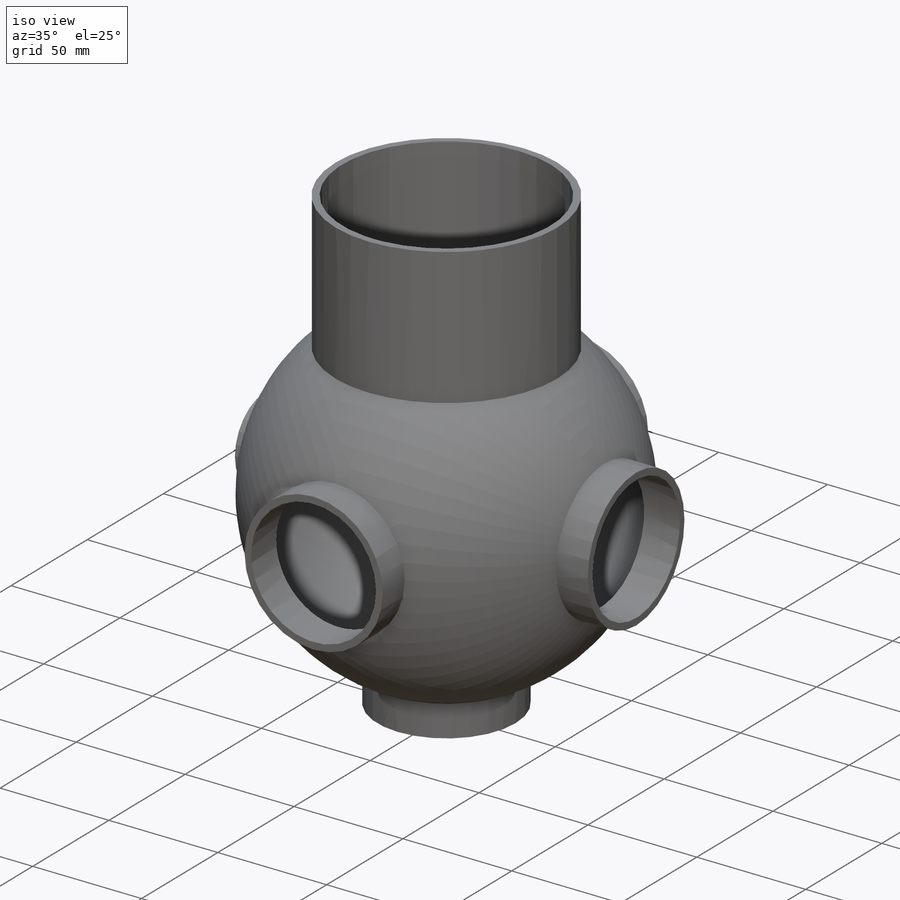
[diagram: iso view]
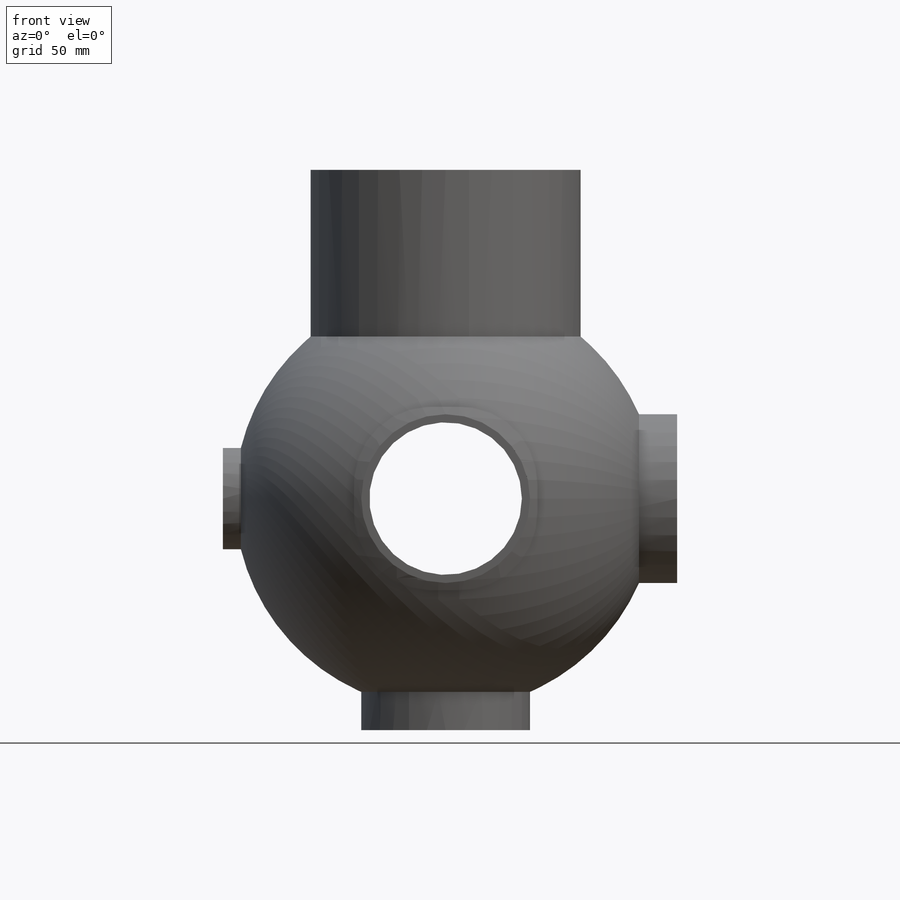
[diagram: front view]
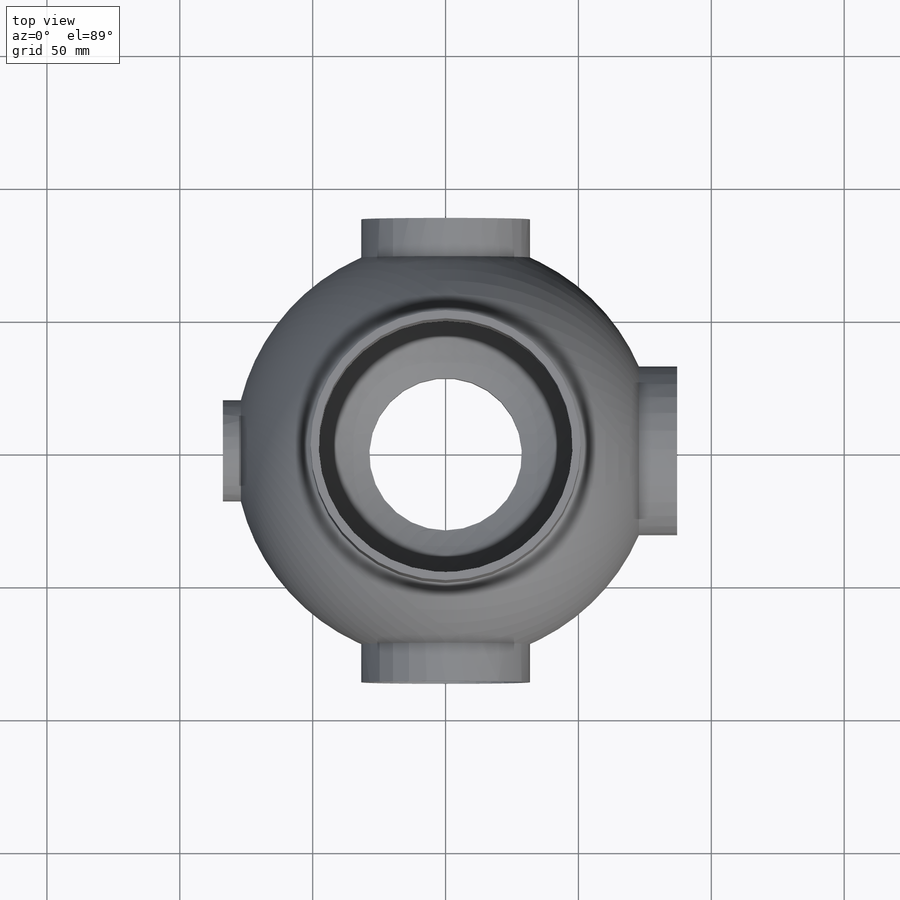
[diagram: top view]
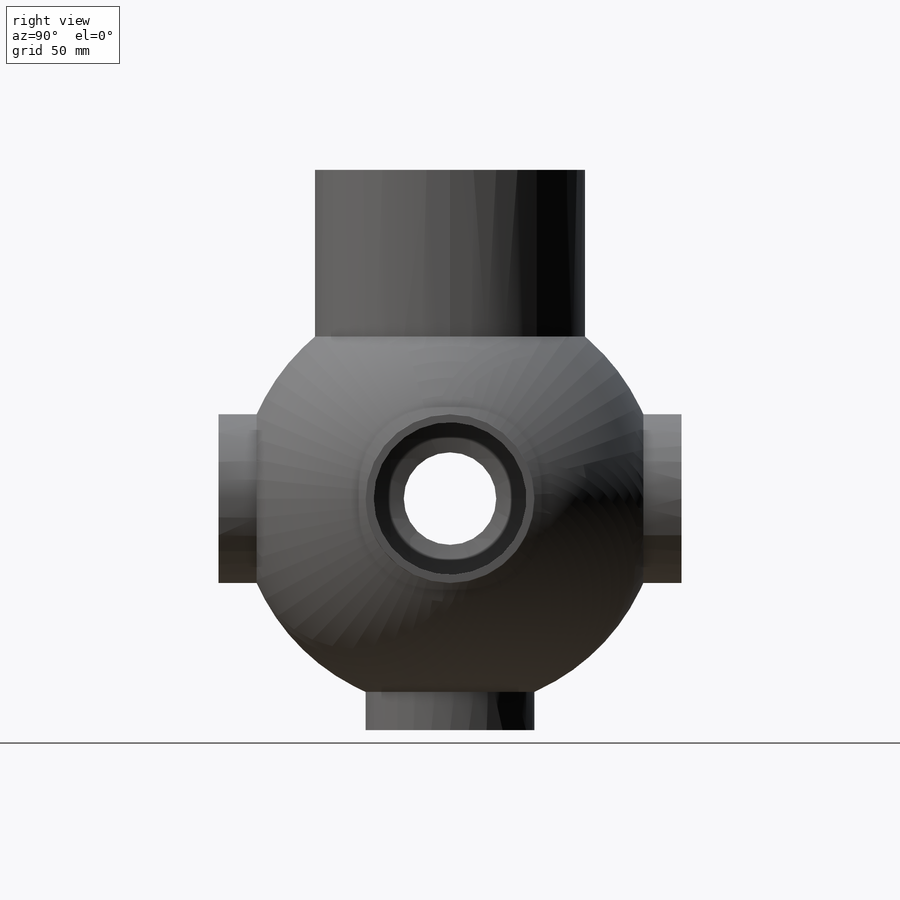
[diagram: right view]
SOLIDWORKS PART (.sldprt)
format: sldprt  version: not decoded by parser v0  size: 385,536 bytes
history: native  units: mm
features: sketch x18, extrude x5, cut_extrude x5, material x1, cut_revolve x1 (+11 scaffold rows collapsed)
feature tree (41):
  scaffold x11  (default folders/planes/origin — collapsed)
  material  "Material <not specified>"
  sketch  "Sketch1"  dims[D1=101.6mm]
  extrude  "Boss-Extrude1"  Depth=123.698mm
  sketch  "Sketch31"  dims[D1=~39.182438mm]
  extrude  "Boss-Extrude6"  Depth=87.122mm
  sketch  "3DSketch1"
  sketch  "Sketch7"  dims[D1=~47.737799mm]
  extrude  "Boss-Extrude3"  Depth=87.122mm
  sketch  "Sketch9"  dims[D1=~35.297518mm]
  extrude  "Boss-Extrude4"  Depth=87.122mm
  sketch  "Sketch11"  dims[D1=~36.779624mm]
  extrude  "Boss-Extrude5"  Depth=83.82mm
  sketch  "Sketch22"
  sketch  "Sketch23"  dims[D1=360.0deg D3=10.0mm D4=1.0mm D7=0.0mm]
  sketch  "Sketch12"  dims[D1=~37.00366mm]
  cut_extrude  "Cut-Extrude4"  [1 undecoded]
  sketch  "Sketch32"  dims[D1=~27.335225mm]
  cut_extrude  "Cut-Extrude8"  [1 undecoded]
  sketch  "Sketch13"  dims[D1=~30.220762mm]
  cut_extrude  "Cut-Extrude5"  [1 undecoded]
  sketch  "Sketch14"  dims[D1=~26.601626mm]
  cut_extrude  "Cut-Extrude6"  [1 undecoded]
  sketch  "Sketch15"  dims[D1=~15.353451mm]
  cut_extrude  "Cut-Extrude7"  [1 undecoded]
  sketch  "Sketch25"  dims[D1=152.654mm]
  sketch  "Sketch26"
  cut_revolve  "Cut-Revolve1"  Angle=360deg
  sketch  "Sketch28"
  sketch  "Sketch29"
  sketch  "Sketch30"
decode coverage: 18 of 29 modeling features carry decoded parameters
note: ~ marks probable driven/reference dimensions
note: 5 parameter values undecoded
summary: no parameter record found for 5 features
note: suppression state not decoded; provenance and decode notes live in map.json
